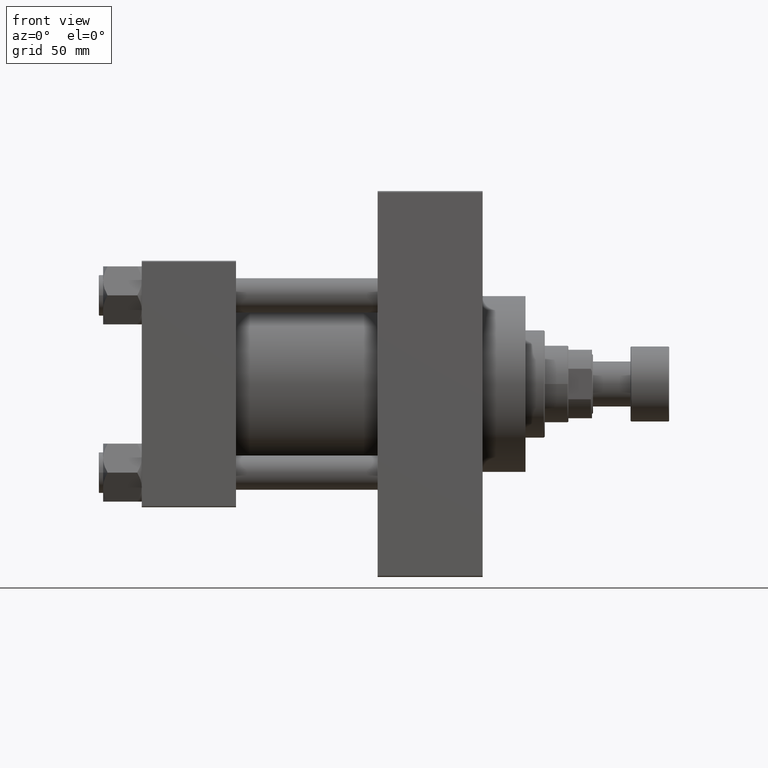
[diagram: clean part render]
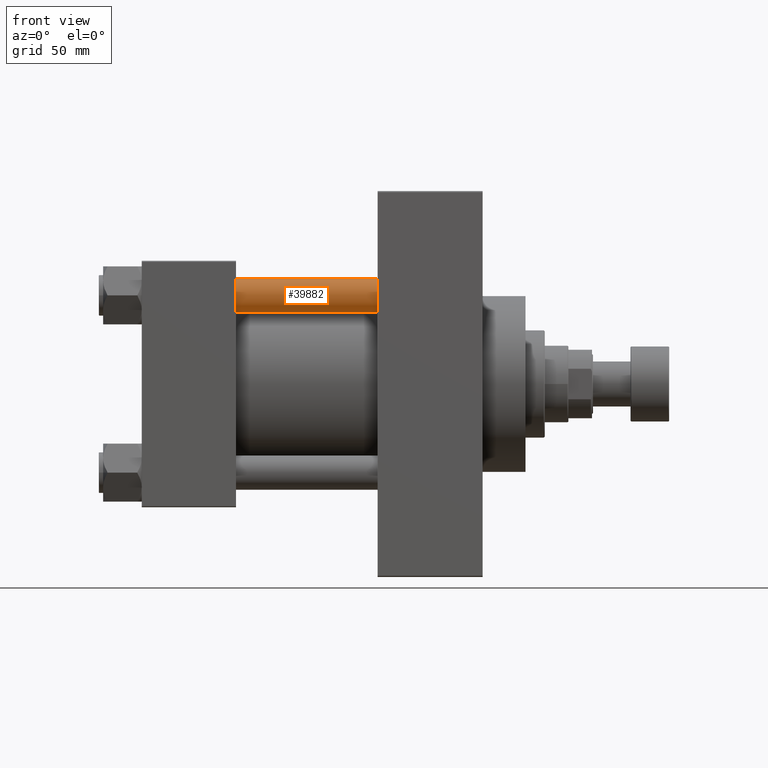
[diagram: same view with one face highlighted and labeled with its STEP entity id]
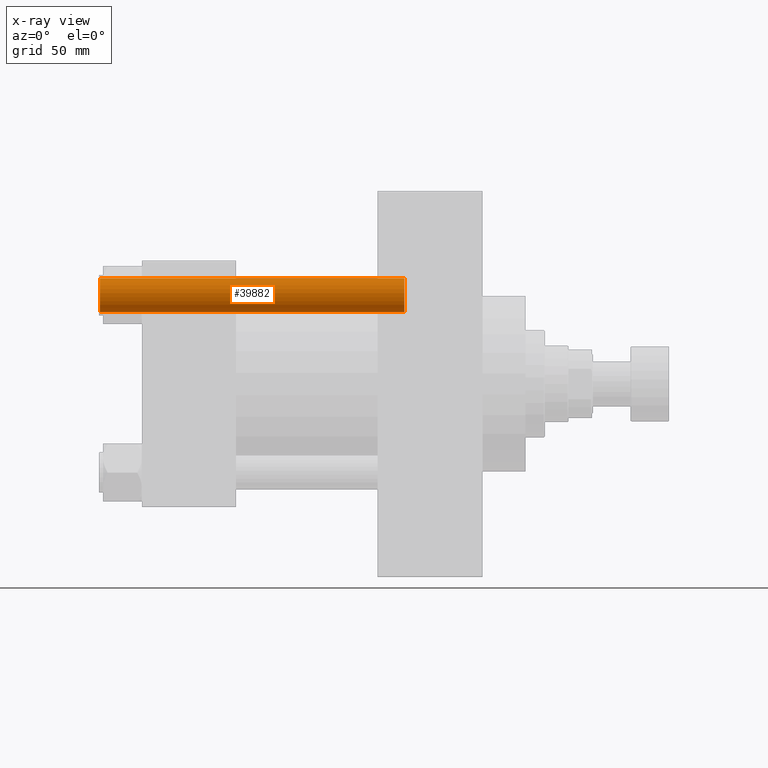
[diagram: x-ray of the same camera — body ghosted, the highlighted face saturated]
A machine part, front view. The second image highlights one B-rep face of the part: STEP entity #39882.
The next image is the same camera in x-ray: the body ghosted, the highlighted face saturated — about 0% of this face is hidden behind the body in this view.
In plain terms, the highlighted cylindrical surface (edge-blend (fillet) strip) has radius 8 mm, axis along (1, 0, 0).
Its self-contained STEP definition (entity closure, byte-faithful):
#103 = CARTESIAN_POINT ( 'NONE',  ( 8.000000000000000000, 9.797174393178825657E-16, 142.4999999999999716 ) ) ;
#1263 = AXIS2_PLACEMENT_3D ( 'NONE', #14834, #29674, #7038 ) ;
#2174 = DIRECTION ( 'NONE',  ( 0.000000000000000000, 0.000000000000000000, -1.000000000000000000 ) ) ;
#4136 = DIRECTION ( 'NONE',  ( -0.000000000000000000, -0.000000000000000000, -1.000000000000000000 ) ) ;
#4770 = DIRECTION ( 'NONE',  ( -0.000000000000000000, -0.000000000000000000, -1.000000000000000000 ) ) ;
#7038 = DIRECTION ( 'NONE',  ( 1.000000000000000000, 0.000000000000000000, 0.000000000000000000 ) ) ;
#8072 = DIRECTION ( 'NONE',  ( -1.000000000000000000, 0.000000000000000000, 0.000000000000000000 ) ) ;
#8905 = VECTOR ( 'NONE', #4770, 1000.000000000000000 ) ;
#9379 = VERTEX_POINT ( 'NONE', #35807 ) ;
#11486 = FACE_OUTER_BOUND ( 'NONE', #24448, .T. ) ;
#12551 = CARTESIAN_POINT ( 'NONE',  ( -8.000000000000000000, 0.000000000000000000, 143.0000000000000000 ) ) ;
#14613 = CARTESIAN_POINT ( 'NONE',  ( 8.000000000000000000, 9.797174393178825657E-16, 143.0000000000000000 ) ) ;
#14834 = CARTESIAN_POINT ( 'NONE',  ( 0.000000000000000000, 0.000000000000000000, 0.4999999999999726885 ) ) ;
#16080 = EDGE_CURVE ( 'NONE', #41975, #38948, #35914, .T. ) ;
#19038 = ORIENTED_EDGE ( 'NONE', *, *, #29500, .T. ) ;
#22677 = CARTESIAN_POINT ( 'NONE',  ( 0.000000000000000000, 0.000000000000000000, 143.0000000000000000 ) ) ;
#24448 = EDGE_LOOP ( 'NONE', ( #39473, #19038, #30529, #29829 ) ) ;
#25901 = AXIS2_PLACEMENT_3D ( 'NONE', #42827, #2174, #42345 ) ;
#26323 = CYLINDRICAL_SURFACE ( 'NONE', #29224, 8.000000000000000000 ) ;
#29224 = AXIS2_PLACEMENT_3D ( 'NONE', #22677, #41426, #8072 ) ;
#29500 = EDGE_CURVE ( 'NONE', #38948, #9379, #40410, .T. ) ;
#29674 = DIRECTION ( 'NONE',  ( -0.000000000000000000, -0.000000000000000000, 1.000000000000000000 ) ) ;
#29829 = ORIENTED_EDGE ( 'NONE', *, *, #32952, .F. ) ;
#30529 = ORIENTED_EDGE ( 'NONE', *, *, #36488, .T. ) ;
#32880 = VECTOR ( 'NONE', #4136, 1000.000000000000000 ) ;
#32952 = EDGE_CURVE ( 'NONE', #41975, #44622, #38122, .T. ) ;
#35807 = CARTESIAN_POINT ( 'NONE',  ( 8.000000000000000000, 9.797174393178825657E-16, 0.4999999999999726885 ) ) ;
#35914 = CIRCLE ( 'NONE', #25901, 8.000000000000000000 ) ;
#36213 = CIRCLE ( 'NONE', #1263, 8.000000000000000000 ) ;
#36488 = EDGE_CURVE ( 'NONE', #9379, #44622, #36213, .T. ) ;
#37012 = CARTESIAN_POINT ( 'NONE',  ( -8.000000000000000000, 0.000000000000000000, 142.4999999999999716 ) ) ;
#38122 = LINE ( 'NONE', #12551, #8905 ) ;
#38948 = VERTEX_POINT ( 'NONE', #103 ) ;
#39473 = ORIENTED_EDGE ( 'NONE', *, *, #16080, .T. ) ;
#39882 = ADVANCED_FACE ( 'NONE', ( #11486 ), #26323, .T. ) ;
#40410 = LINE ( 'NONE', #14613, #32880 ) ;
#41426 = DIRECTION ( 'NONE',  ( -0.000000000000000000, -0.000000000000000000, -1.000000000000000000 ) ) ;
#41975 = VERTEX_POINT ( 'NONE', #37012 ) ;
#42345 = DIRECTION ( 'NONE',  ( 1.000000000000000000, 0.000000000000000000, 0.000000000000000000 ) ) ;
#42827 = CARTESIAN_POINT ( 'NONE',  ( 0.000000000000000000, 0.000000000000000000, 142.4999999999999716 ) ) ;
#44622 = VERTEX_POINT ( 'NONE', #46215 ) ;
#46215 = CARTESIAN_POINT ( 'NONE',  ( -8.000000000000000000, 0.000000000000000000, 0.4999999999999726885 ) ) ;